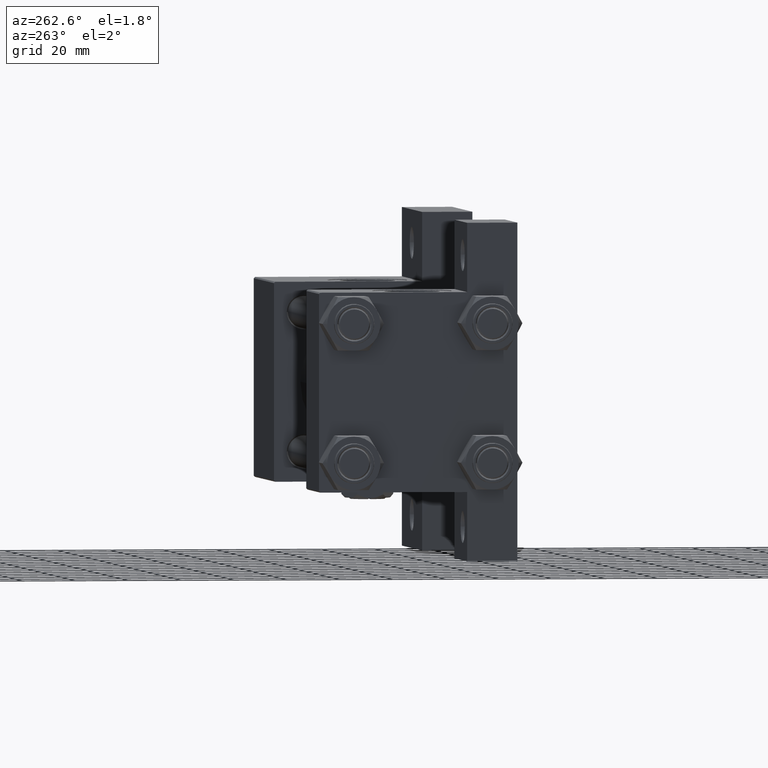
[diagram: clean part render]
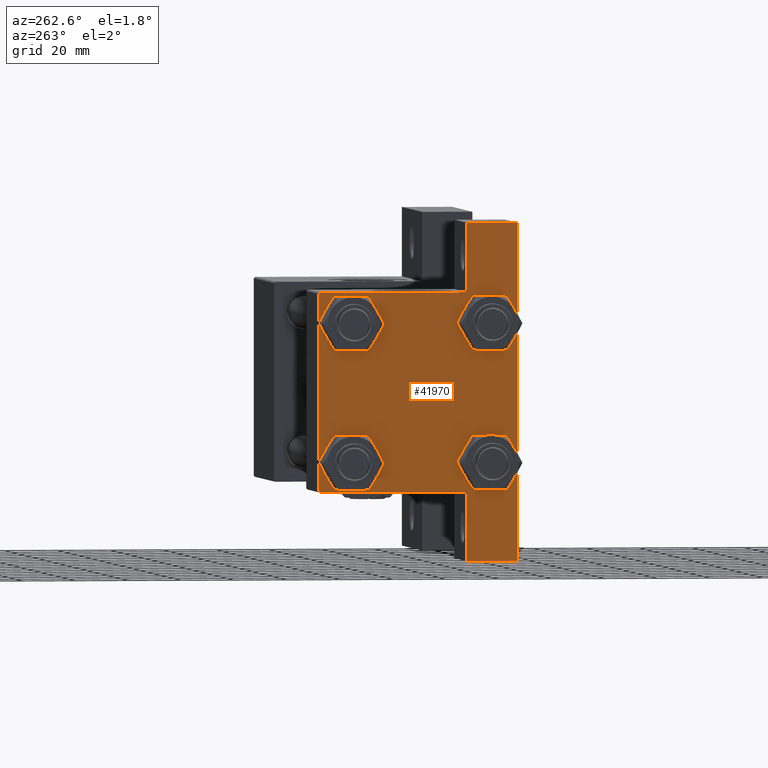
[diagram: same view with one face highlighted and labeled with its STEP entity id]
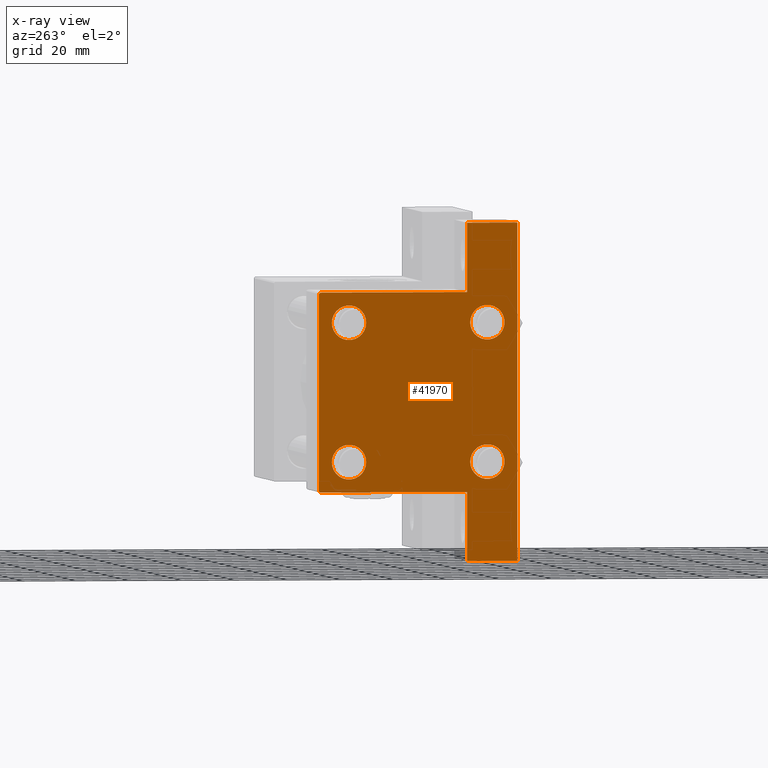
[diagram: x-ray of the same camera — body ghosted, the highlighted face saturated]
A machine part, auxiliary view. The second image highlights one B-rep face of the part: STEP entity #41970.
The next image is the same camera in x-ray: the body ghosted, the highlighted face saturated — about 0% of this face is hidden behind the body in this view.
In plain terms, the highlighted planar face has unit normal (-1, 0, -0).
Its self-contained STEP definition (entity closure, byte-faithful):
#481 = LINE ( 'NONE', #14944, #14315 ) ;
#513 = VERTEX_POINT ( 'NONE', #21275 ) ;
#567 = CARTESIAN_POINT ( 'NONE',  ( 0.000000000000000000, -26.14999999999999147, 26.15000000000000924 ) ) ;
#1059 = DIRECTION ( 'NONE',  ( 1.000000000000000000, -0.000000000000000000, 0.000000000000000000 ) ) ;
#1296 = EDGE_CURVE ( 'NONE', #48054, #18991, #44568, .T. ) ;
#1681 = ORIENTED_EDGE ( 'NONE', *, *, #15678, .T. ) ;
#2018 = CARTESIAN_POINT ( 'NONE',  ( 0.000000000000000000, 26.14999999999999858, 26.15000000000000213 ) ) ;
#2100 = ORIENTED_EDGE ( 'NONE', *, *, #7928, .T. ) ;
#2452 = ORIENTED_EDGE ( 'NONE', *, *, #14626, .T. ) ;
#2577 = FACE_BOUND ( 'NONE', #19151, .T. ) ;
#2727 = CARTESIAN_POINT ( 'NONE',  ( 1.595073532467135757E-14, 63.50000000000001421, -18.50000000000000355 ) ) ;
#3090 = DIRECTION ( 'NONE',  ( 4.278042683914906889E-17, -1.000000000000000000, 0.000000000000000000 ) ) ;
#3193 = EDGE_CURVE ( 'NONE', #12415, #11659, #32693, .T. ) ;
#3480 = CARTESIAN_POINT ( 'NONE',  ( 0.000000000000000000, 37.49999999999999289, 37.50000000000000000 ) ) ;
#3589 = AXIS2_PLACEMENT_3D ( 'NONE', #35736, #47178, #13064 ) ;
#3826 = LINE ( 'NONE', #45657, #28534 ) ;
#4436 = CARTESIAN_POINT ( 'NONE',  ( 0.000000000000000000, 37.24999999999999289, 37.24999999999999289 ) ) ;
#5188 = AXIS2_PLACEMENT_3D ( 'NONE', #567, #1059, #38419 ) ;
#5658 = EDGE_CURVE ( 'NONE', #8216, #18278, #49130, .T. ) ;
#5827 = CARTESIAN_POINT ( 'NONE',  ( 0.000000000000000000, -26.14999999999999147, 26.15000000000000924 ) ) ;
#6265 = AXIS2_PLACEMENT_3D ( 'NONE', #5827, #36219, #13054 ) ;
#6323 = DIRECTION ( 'NONE',  ( 1.000000000000000000, -0.000000000000000000, 0.000000000000000000 ) ) ;
#6854 = ORIENTED_EDGE ( 'NONE', *, *, #25255, .T. ) ;
#7031 = CARTESIAN_POINT ( 'NONE',  ( 0.000000000000000000, 0.000000000000000000, 0.000000000000000000 ) ) ;
#7809 = EDGE_CURVE ( 'NONE', #44157, #26557, #3826, .T. ) ;
#7928 = EDGE_CURVE ( 'NONE', #48054, #44157, #39175, .T. ) ;
#8216 = VERTEX_POINT ( 'NONE', #12723 ) ;
#8363 = VERTEX_POINT ( 'NONE', #27364 ) ;
#8427 = EDGE_LOOP ( 'NONE', ( #1681, #23613 ) ) ;
#8993 = DIRECTION ( 'NONE',  ( 0.000000000000000000, 0.000000000000000000, 1.000000000000000000 ) ) ;
#9517 = CARTESIAN_POINT ( 'NONE',  ( -0.000000000000000000, -37.25000000000000000, 37.25000000000000000 ) ) ;
#10124 = ORIENTED_EDGE ( 'NONE', *, *, #7809, .T. ) ;
#10797 = CARTESIAN_POINT ( 'NONE',  ( 3.977209754999744250E-16, -63.49999999999998579, -18.50000000000000355 ) ) ;
#11159 = CIRCLE ( 'NONE', #30256, 6.500000000000023093 ) ;
#11385 = EDGE_CURVE ( 'NONE', #513, #14282, #14230, .T. ) ;
#11546 = DIRECTION ( 'NONE',  ( 1.000000000000000000, -0.000000000000000000, 0.000000000000000000 ) ) ;
#11659 = VERTEX_POINT ( 'NONE', #40563 ) ;
#12008 = CARTESIAN_POINT ( 'NONE',  ( 0.000000000000000000, 26.14999999999999858, 26.15000000000000213 ) ) ;
#12056 = ORIENTED_EDGE ( 'NONE', *, *, #28986, .T. ) ;
#12401 = VERTEX_POINT ( 'NONE', #18980 ) ;
#12415 = VERTEX_POINT ( 'NONE', #18734 ) ;
#12723 = CARTESIAN_POINT ( 'NONE',  ( 0.000000000000000000, -26.14999999999999147, -32.65000000000002700 ) ) ;
#13054 = DIRECTION ( 'NONE',  ( 0.000000000000000000, 0.000000000000000000, 1.000000000000000000 ) ) ;
#13064 = DIRECTION ( 'NONE',  ( 0.000000000000000000, 0.000000000000000000, 1.000000000000000000 ) ) ;
#13112 = ORIENTED_EDGE ( 'NONE', *, *, #5658, .T. ) ;
#13128 = CARTESIAN_POINT ( 'NONE',  ( 0.000000000000000000, -26.14999999999999147, 32.65000000000003411 ) ) ;
#13236 = DIRECTION ( 'NONE',  ( 0.000000000000000000, 0.000000000000000000, 1.000000000000000000 ) ) ;
#13677 = EDGE_LOOP ( 'NONE', ( #26352, #42024 ) ) ;
#13775 = FACE_BOUND ( 'NONE', #41016, .T. ) ;
#14230 = LINE ( 'NONE', #3480, #43617 ) ;
#14282 = VERTEX_POINT ( 'NONE', #28244 ) ;
#14315 = VECTOR ( 'NONE', #33877, 1000.000000000000000 ) ;
#14626 = EDGE_CURVE ( 'NONE', #18278, #8216, #42104, .T. ) ;
#14944 = CARTESIAN_POINT ( 'NONE',  ( 0.000000000000000000, 37.49999999999999289, 37.50000000000000000 ) ) ;
#15438 = CARTESIAN_POINT ( 'NONE',  ( 0.000000000000000000, 37.49999999999999289, -18.49999999999999645 ) ) ;
#15513 = LINE ( 'NONE', #10797, #41496 ) ;
#15678 = EDGE_CURVE ( 'NONE', #48078, #33252, #11159, .T. ) ;
#16078 = AXIS2_PLACEMENT_3D ( 'NONE', #12008, #34184, #22976 ) ;
#16219 = VECTOR ( 'NONE', #47021, 1000.000000000000114 ) ;
#16648 = LINE ( 'NONE', #4436, #16219 ) ;
#17063 = ORIENTED_EDGE ( 'NONE', *, *, #42267, .T. ) ;
#17428 = AXIS2_PLACEMENT_3D ( 'NONE', #7031, #21998, #37436 ) ;
#17723 = DIRECTION ( 'NONE',  ( 1.000000000000000000, -0.000000000000000000, 0.000000000000000000 ) ) ;
#17766 = FACE_BOUND ( 'NONE', #13677, .T. ) ;
#17917 = DIRECTION ( 'NONE',  ( -2.877097866686192789E-16, -1.000000000000000000, 0.000000000000000000 ) ) ;
#18278 = VERTEX_POINT ( 'NONE', #39075 ) ;
#18734 = CARTESIAN_POINT ( 'NONE',  ( 0.000000000000000000, -37.50000000000000711, 36.99999999999999289 ) ) ;
#18980 = CARTESIAN_POINT ( 'NONE',  ( 0.000000000000000000, 37.49999999999999289, 37.00000000000000000 ) ) ;
#18991 = VERTEX_POINT ( 'NONE', #15438 ) ;
#18998 = ORIENTED_EDGE ( 'NONE', *, *, #1296, .F. ) ;
#19015 = DIRECTION ( 'NONE',  ( 0.000000000000000000, -1.000000000000000000, -9.251858538542972814E-17 ) ) ;
#19151 = EDGE_LOOP ( 'NONE', ( #2452, #13112 ) ) ;
#20447 = LINE ( 'NONE', #35654, #29657 ) ;
#20621 = ORIENTED_EDGE ( 'NONE', *, *, #40337, .T. ) ;
#20641 = AXIS2_PLACEMENT_3D ( 'NONE', #46864, #27949, #8993 ) ;
#20739 = EDGE_CURVE ( 'NONE', #11659, #22982, #15513, .T. ) ;
#20964 = DIRECTION ( 'NONE',  ( -0.000000000000000000, 0.7071067811865474617, 0.7071067811865474617 ) ) ;
#21272 = DIRECTION ( 'NONE',  ( 0.000000000000000000, 0.000000000000000000, 1.000000000000000000 ) ) ;
#21275 = CARTESIAN_POINT ( 'NONE',  ( 0.000000000000000000, 36.99999999999999289, 37.50000000000000000 ) ) ;
#21729 = EDGE_CURVE ( 'NONE', #33252, #48078, #39975, .T. ) ;
#21844 = EDGE_CURVE ( 'NONE', #22982, #26557, #20447, .T. ) ;
#21998 = DIRECTION ( 'NONE',  ( -1.000000000000000000, 0.000000000000000000, -0.000000000000000000 ) ) ;
#22039 = DIRECTION ( 'NONE',  ( 0.000000000000000000, 0.000000000000000000, 1.000000000000000000 ) ) ;
#22252 = VERTEX_POINT ( 'NONE', #29626 ) ;
#22976 = DIRECTION ( 'NONE',  ( 0.000000000000000000, 0.000000000000000000, 1.000000000000000000 ) ) ;
#22982 = VERTEX_POINT ( 'NONE', #29397 ) ;
#23251 = VERTEX_POINT ( 'NONE', #13128 ) ;
#23472 = CIRCLE ( 'NONE', #3589, 6.500000000000015987 ) ;
#23613 = ORIENTED_EDGE ( 'NONE', *, *, #21729, .T. ) ;
#24092 = ORIENTED_EDGE ( 'NONE', *, *, #3193, .F. ) ;
#24447 = DIRECTION ( 'NONE',  ( 0.000000000000000000, -1.734723475976806848E-16, -1.000000000000000000 ) ) ;
#25255 = EDGE_CURVE ( 'NONE', #513, #12401, #16648, .T. ) ;
#26223 = CARTESIAN_POINT ( 'NONE',  ( 0.000000000000000000, 26.14999999999999858, -32.65000000000001990 ) ) ;
#26285 = CARTESIAN_POINT ( 'NONE',  ( 0.000000000000000000, 26.14999999999999858, 19.64999999999998437 ) ) ;
#26352 = ORIENTED_EDGE ( 'NONE', *, *, #27823, .T. ) ;
#26557 = VERTEX_POINT ( 'NONE', #49177 ) ;
#27364 = CARTESIAN_POINT ( 'NONE',  ( 0.000000000000000000, -26.14999999999999147, 19.64999999999999147 ) ) ;
#27823 = EDGE_CURVE ( 'NONE', #22252, #42036, #23472, .T. ) ;
#27949 = DIRECTION ( 'NONE',  ( 1.000000000000000000, -0.000000000000000000, 0.000000000000000000 ) ) ;
#27983 = CARTESIAN_POINT ( 'NONE',  ( 1.595073532467135441E-14, 63.50000000000001421, 26.72167621838005047 ) ) ;
#28244 = CARTESIAN_POINT ( 'NONE',  ( 0.000000000000000000, -37.00000000000000711, 37.49999999999999289 ) ) ;
#28534 = VECTOR ( 'NONE', #19015, 1000.000000000000000 ) ;
#28535 = CIRCLE ( 'NONE', #41251, 6.500000000000015987 ) ;
#28718 = LINE ( 'NONE', #9517, #41008 ) ;
#28986 = EDGE_CURVE ( 'NONE', #23251, #8363, #45748, .T. ) ;
#29097 = EDGE_CURVE ( 'NONE', #12415, #14282, #28718, .T. ) ;
#29397 = CARTESIAN_POINT ( 'NONE',  ( 3.977209754999747208E-16, -63.50000000000000000, -18.50000000000000355 ) ) ;
#29626 = CARTESIAN_POINT ( 'NONE',  ( 0.000000000000000000, 26.14999999999999858, -19.64999999999998792 ) ) ;
#29657 = VECTOR ( 'NONE', #24447, 1000.000000000000000 ) ;
#29729 = FACE_BOUND ( 'NONE', #8427, .T. ) ;
#30006 = CARTESIAN_POINT ( 'NONE',  ( 0.000000000000000000, -26.14999999999999147, -26.15000000000000924 ) ) ;
#30256 = AXIS2_PLACEMENT_3D ( 'NONE', #2018, #17723, #13236 ) ;
#32387 = EDGE_LOOP ( 'NONE', ( #24092, #39527, #36777, #6854, #17063, #18998, #2100, #10124, #38302, #33019 ) ) ;
#32693 = LINE ( 'NONE', #35671, #47458 ) ;
#32974 = FACE_OUTER_BOUND ( 'NONE', #32387, .T. ) ;
#33019 = ORIENTED_EDGE ( 'NONE', *, *, #20739, .F. ) ;
#33252 = VERTEX_POINT ( 'NONE', #26285 ) ;
#33877 = DIRECTION ( 'NONE',  ( 0.000000000000000000, 0.000000000000000000, -1.000000000000000000 ) ) ;
#34023 = AXIS2_PLACEMENT_3D ( 'NONE', #30006, #11546, #22039 ) ;
#34184 = DIRECTION ( 'NONE',  ( 1.000000000000000000, -0.000000000000000000, 0.000000000000000000 ) ) ;
#35654 = CARTESIAN_POINT ( 'NONE',  ( 3.977209754999747208E-16, -63.49999999999998579, 26.72167621838007889 ) ) ;
#35671 = CARTESIAN_POINT ( 'NONE',  ( 0.000000000000000000, -37.50000000000000711, 37.49999999999999289 ) ) ;
#35736 = CARTESIAN_POINT ( 'NONE',  ( 0.000000000000000000, 26.14999999999999858, -26.15000000000000213 ) ) ;
#35765 = CARTESIAN_POINT ( 'NONE',  ( 1.595073532467135441E-14, 63.50000000000000000, -18.50000000000000355 ) ) ;
#35909 = CARTESIAN_POINT ( 'NONE',  ( 1.595073532467135441E-14, 63.50000000000000000, -37.50000000000002132 ) ) ;
#36219 = DIRECTION ( 'NONE',  ( 1.000000000000000000, -0.000000000000000000, 0.000000000000000000 ) ) ;
#36468 = CARTESIAN_POINT ( 'NONE',  ( 0.000000000000000000, 26.14999999999999858, -26.15000000000000213 ) ) ;
#36777 = ORIENTED_EDGE ( 'NONE', *, *, #11385, .F. ) ;
#37436 = DIRECTION ( 'NONE',  ( -0.000000000000000000, 0.000000000000000000, 1.000000000000000000 ) ) ;
#38302 = ORIENTED_EDGE ( 'NONE', *, *, #21844, .F. ) ;
#38419 = DIRECTION ( 'NONE',  ( 0.000000000000000000, 0.000000000000000000, 1.000000000000000000 ) ) ;
#38853 = CIRCLE ( 'NONE', #6265, 6.500000000000023093 ) ;
#39075 = CARTESIAN_POINT ( 'NONE',  ( 0.000000000000000000, -26.14999999999999147, -19.64999999999999503 ) ) ;
#39175 = LINE ( 'NONE', #27983, #41247 ) ;
#39527 = ORIENTED_EDGE ( 'NONE', *, *, #29097, .T. ) ;
#39975 = CIRCLE ( 'NONE', #16078, 6.500000000000023093 ) ;
#40337 = EDGE_CURVE ( 'NONE', #8363, #23251, #38853, .T. ) ;
#40343 = EDGE_CURVE ( 'NONE', #42036, #22252, #28535, .T. ) ;
#40563 = CARTESIAN_POINT ( 'NONE',  ( -7.145701223179004046E-16, -37.50000000000000711, -18.50000000000000355 ) ) ;
#41008 = VECTOR ( 'NONE', #20964, 1000.000000000000114 ) ;
#41016 = EDGE_LOOP ( 'NONE', ( #12056, #20621 ) ) ;
#41247 = VECTOR ( 'NONE', #43143, 1000.000000000000000 ) ;
#41251 = AXIS2_PLACEMENT_3D ( 'NONE', #36468, #6323, #21272 ) ;
#41399 = CARTESIAN_POINT ( 'NONE',  ( 0.000000000000000000, 26.14999999999999858, 32.65000000000002700 ) ) ;
#41496 = VECTOR ( 'NONE', #3090, 1000.000000000000000 ) ;
#41970 = ADVANCED_FACE ( 'NONE', ( #13775, #2577, #17766, #29729, #32974 ), #44900, .T. ) ;
#42024 = ORIENTED_EDGE ( 'NONE', *, *, #40343, .T. ) ;
#42036 = VERTEX_POINT ( 'NONE', #26223 ) ;
#42104 = CIRCLE ( 'NONE', #20641, 6.500000000000015987 ) ;
#42267 = EDGE_CURVE ( 'NONE', #12401, #18991, #481, .T. ) ;
#43143 = DIRECTION ( 'NONE',  ( 0.000000000000000000, -1.734723475976806848E-16, -1.000000000000000000 ) ) ;
#43617 = VECTOR ( 'NONE', #44607, 1000.000000000000000 ) ;
#44157 = VERTEX_POINT ( 'NONE', #35909 ) ;
#44568 = LINE ( 'NONE', #2727, #46605 ) ;
#44607 = DIRECTION ( 'NONE',  ( 0.000000000000000000, -1.000000000000000000, -9.251858538542971581E-17 ) ) ;
#44900 = PLANE ( 'NONE',  #17428 ) ;
#45657 = CARTESIAN_POINT ( 'NONE',  ( 0.000000000000000000, 37.49999999999999289, -37.50000000000000000 ) ) ;
#45748 = CIRCLE ( 'NONE', #5188, 6.500000000000023093 ) ;
#46605 = VECTOR ( 'NONE', #17917, 1000.000000000000000 ) ;
#46864 = CARTESIAN_POINT ( 'NONE',  ( 0.000000000000000000, -26.14999999999999147, -26.15000000000000924 ) ) ;
#47021 = DIRECTION ( 'NONE',  ( 0.000000000000000000, 0.7071067811865474617, -0.7071067811865474617 ) ) ;
#47178 = DIRECTION ( 'NONE',  ( 1.000000000000000000, -0.000000000000000000, 0.000000000000000000 ) ) ;
#47458 = VECTOR ( 'NONE', #47869, 1000.000000000000000 ) ;
#47869 = DIRECTION ( 'NONE',  ( 0.000000000000000000, 9.251858538542971581E-17, -1.000000000000000000 ) ) ;
#48054 = VERTEX_POINT ( 'NONE', #35765 ) ;
#48078 = VERTEX_POINT ( 'NONE', #41399 ) ;
#49130 = CIRCLE ( 'NONE', #34023, 6.500000000000015987 ) ;
#49177 = CARTESIAN_POINT ( 'NONE',  ( 3.977209754999747208E-16, -63.50000000000000000, -37.49999999999999289 ) ) ;